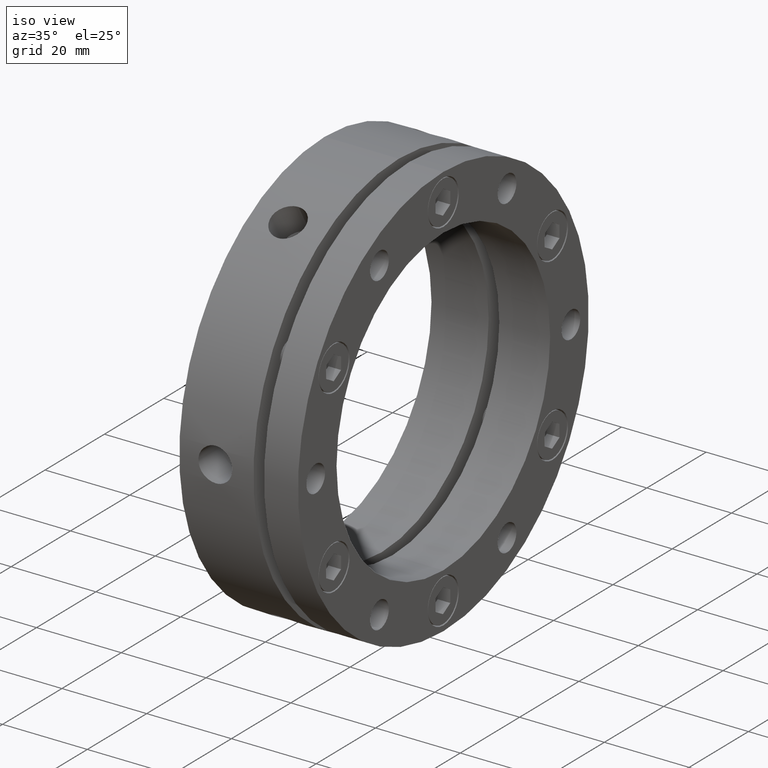
[diagram: clean part render]
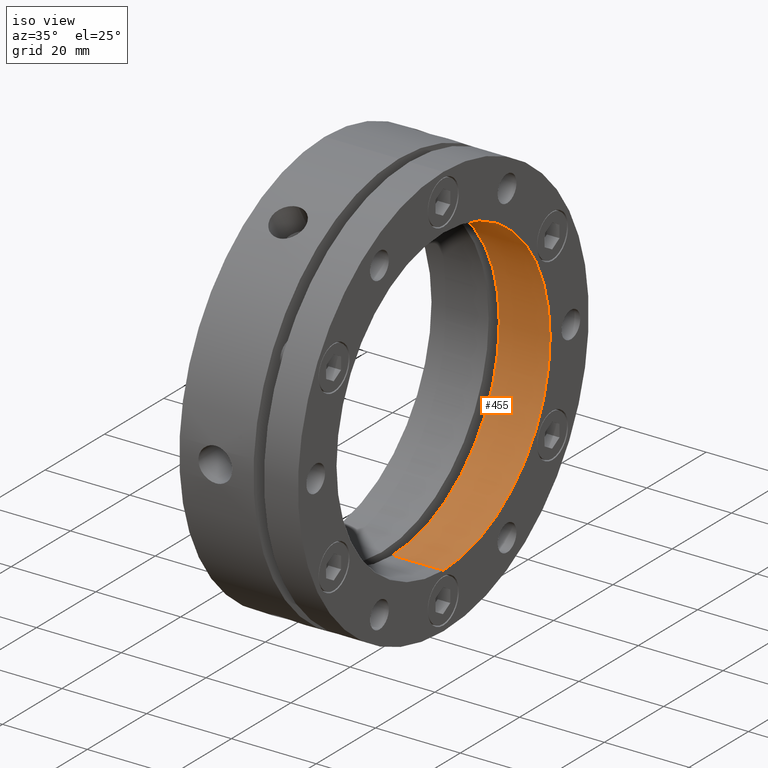
[diagram: same view with one face highlighted and labeled with its STEP entity id]
A machine part, iso view. The second image highlights one B-rep face of the part: STEP entity #455.
In plain terms, the highlighted cylindrical surface (partial cylindrical patch) has radius 36 mm, axis along (1, 0, 0).
Its self-contained STEP definition (entity closure, byte-faithful):
#21 = EDGE_CURVE ( 'NONE', #846, #851, #1702, .T. ) ;
#23 = EDGE_CURVE ( 'NONE', #845, #850, #1710, .T. ) ;
#108 = EDGE_CURVE ( 'NONE', #851, #850, #1835, .T. ) ;
#116 = EDGE_CURVE ( 'NONE', #846, #845, #1842, .T. ) ;
#189 = DIRECTION ( 'NONE',  ( 1.000000000000000000, 0.0000000000000000000, 0.0000000000000000000 ) ) ;
#190 = DIRECTION ( 'NONE',  ( 1.000000000000000000, 0.0000000000000000000, 0.0000000000000000000 ) ) ;
#191 = CARTESIAN_POINT ( 'NONE',  ( 13.99999999999999300, 4.408728476930471600E-015, 36.00000000000000700 ) ) ;
#195 = CARTESIAN_POINT ( 'NONE',  ( 13.99999999999999300, 0.0000000000000000000, -36.00000000000000700 ) ) ;
#455 = ADVANCED_FACE ( 'NONE', ( #3033 ), #3037, .F. ) ;
#845 = VERTEX_POINT ( 'NONE', #4181 ) ;
#846 = VERTEX_POINT ( 'NONE', #4182 ) ;
#850 = VERTEX_POINT ( 'NONE', #4186 ) ;
#851 = VERTEX_POINT ( 'NONE', #4187 ) ;
#1273 = EDGE_LOOP ( 'NONE', ( #1451, #1452, #1453, #1454 ) ) ;
#1451 = ORIENTED_EDGE ( 'NONE', *, *, #21, .F. ) ;
#1452 = ORIENTED_EDGE ( 'NONE', *, *, #116, .T. ) ;
#1453 = ORIENTED_EDGE ( 'NONE', *, *, #23, .T. ) ;
#1454 = ORIENTED_EDGE ( 'NONE', *, *, #108, .F. ) ;
#1702 = LINE ( 'NONE', #191, #1712 ) ;
#1710 = LINE ( 'NONE', #195, #1715 ) ;
#1712 = VECTOR ( 'NONE', #189, 1000.000000000000000 ) ;
#1715 = VECTOR ( 'NONE', #190, 1000.000000000000000 ) ;
#1835 = CIRCLE ( 'NONE', #4508, 36.00000000000000700 ) ;
#1842 = CIRCLE ( 'NONE', #4516, 36.00000000000000700 ) ;
#2017 = CARTESIAN_POINT ( 'NONE',  ( 27.99999999999999300, 0.0000000000000000000, 0.0000000000000000000 ) ) ;
#2018 = DIRECTION ( 'NONE',  ( -1.000000000000000000, -0.0000000000000000000, -0.0000000000000000000 ) ) ;
#2019 = DIRECTION ( 'NONE',  ( 0.0000000000000000000, 0.0000000000000000000, -1.000000000000000000 ) ) ;
#2044 = CARTESIAN_POINT ( 'NONE',  ( 16.00000000000000000, 0.0000000000000000000, 0.0000000000000000000 ) ) ;
#2045 = DIRECTION ( 'NONE',  ( -1.000000000000000000, -0.0000000000000000000, -0.0000000000000000000 ) ) ;
#2046 = DIRECTION ( 'NONE',  ( 0.0000000000000000000, 0.0000000000000000000, -1.000000000000000000 ) ) ;
#2299 = DIRECTION ( 'NONE',  ( 0.0000000000000000000, 0.0000000000000000000, -1.000000000000000000 ) ) ;
#2302 = DIRECTION ( 'NONE',  ( 1.000000000000000000, 0.0000000000000000000, 0.0000000000000000000 ) ) ;
#2303 = CARTESIAN_POINT ( 'NONE',  ( 13.99999999999999300, 0.0000000000000000000, 0.0000000000000000000 ) ) ;
#3033 = FACE_OUTER_BOUND ( 'NONE', #1273, .T. ) ;
#3037 = CYLINDRICAL_SURFACE ( 'NONE', #4582, 36.00000000000000700 ) ;
#4181 = CARTESIAN_POINT ( 'NONE',  ( 16.00000000000000000, 0.0000000000000000000, -36.00000000000000700 ) ) ;
#4182 = CARTESIAN_POINT ( 'NONE',  ( 16.00000000000000000, 4.408728476930471600E-015, 36.00000000000000700 ) ) ;
#4186 = CARTESIAN_POINT ( 'NONE',  ( 27.99999999999999300, 0.0000000000000000000, -36.00000000000000700 ) ) ;
#4187 = CARTESIAN_POINT ( 'NONE',  ( 27.99999999999999300, 4.408728476930471600E-015, 36.00000000000000700 ) ) ;
#4508 = AXIS2_PLACEMENT_3D ( 'NONE', #2017, #2018, #2019 ) ;
#4516 = AXIS2_PLACEMENT_3D ( 'NONE', #2044, #2045, #2046 ) ;
#4582 = AXIS2_PLACEMENT_3D ( 'NONE', #2303, #2302, #2299 ) ;